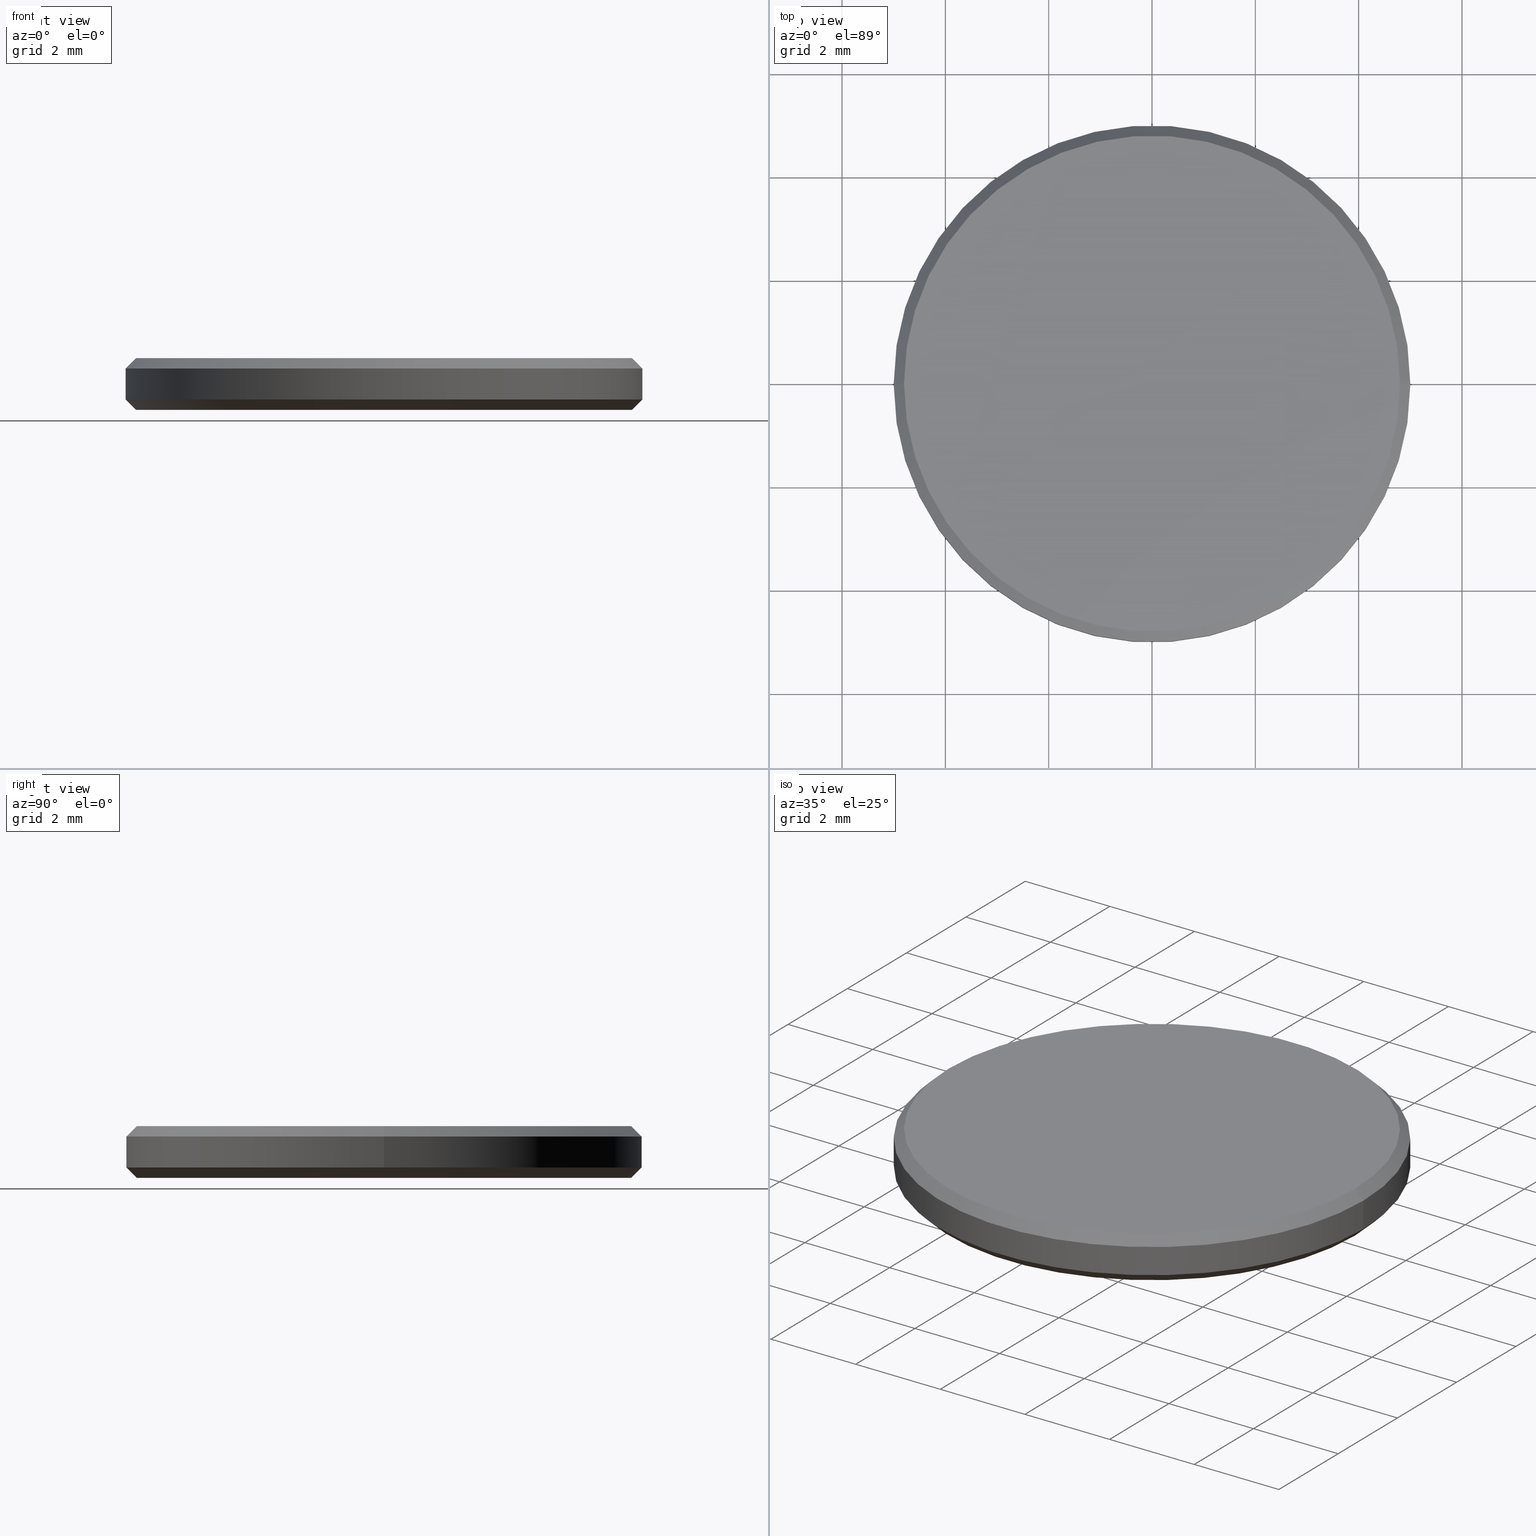
[diagram: canonical four-view strip — front | top / right | iso, engineering-drawing reading convention]
A machine part, canonical four-view strip (front | top / right | iso — engineering-drawing reading convention). The complete STEP part file that produces these views, byte-faithful:
ISO-10303-21;
HEADER;
FILE_DESCRIPTION (( 'STEP AP214' ),
    '1' );
FILE_NAME ('GNIF-140-2420-D10.STEP',
    '2024-07-19T14:37:52',
    ( '' ),
    ( '' ),
    'SwSTEP 2.0',
    'SolidWorks 2022',
    '' );
FILE_SCHEMA (( 'AUTOMOTIVE_DESIGN' ));
ENDSEC;

DATA;
#1 = VERTEX_POINT ( 'NONE', #119 ) ;
#2 = APPLICATION_CONTEXT ( 'automotive_design' ) ;
#3 = EDGE_LOOP ( 'NONE', ( #44, #53, #63, #75 ) ) ;
#4 = EDGE_CURVE ( 'NONE', #194, #79, #20, .T. ) ;
#5 = AXIS2_PLACEMENT_3D ( 'NONE', #37, #19, #239 ) ;
#6 = VERTEX_POINT ( 'NONE', #97 ) ;
#7 = AXIS2_PLACEMENT_3D ( 'NONE', #192, #212, #233 ) ;
#8 = CARTESIAN_POINT ( 'NONE',  ( 0.000000000000000000, 0.000000000000000000, 1.000000000000000000 ) ) ;
#9 = PRESENTATION_LAYER_ASSIGNMENT (  '', '', ( #166 ) ) ;
#10 = FACE_OUTER_BOUND ( 'NONE', #149, .T. ) ;
#11 = DIRECTION ( 'NONE',  ( 1.000000000000000000, 0.000000000000000000, 0.000000000000000000 ) ) ;
#12 = EDGE_CURVE ( 'NONE', #155, #194, #175, .T. ) ;
#13 = FACE_OUTER_BOUND ( 'NONE', #150, .T. ) ;
#14 =( NAMED_UNIT ( * ) SI_UNIT ( $, .STERADIAN. ) SOLID_ANGLE_UNIT ( ) );
#15 = AXIS2_PLACEMENT_3D ( 'NONE', #82, #180, #158 ) ;
#16 = DIRECTION ( 'NONE',  ( -0.000000000000000000, -0.000000000000000000, -1.000000000000000000 ) ) ;
#17 = STYLED_ITEM ( 'NONE', ( #68 ), #95 ) ;
#18 = ADVANCED_BREP_SHAPE_REPRESENTATION ( 'GNIF-140-2420-D10', ( #95, #193 ), #221 ) ;
#19 = DIRECTION ( 'NONE',  ( 0.000000000000000000, 0.000000000000000000, 1.000000000000000000 ) ) ;
#20 = CIRCLE ( 'NONE', #147, 5.000000000000000000 ) ;
#21 = PRODUCT_DEFINITION_SHAPE ( 'NONE', 'NONE',  #169 ) ;
#22 = ORIENTED_EDGE ( 'NONE', *, *, #31, .F. ) ;
#23 = ADVANCED_FACE ( 'NONE', ( #138 ), #40, .T. ) ;
#24 = CARTESIAN_POINT ( 'NONE',  ( 0.000000000000000000, 0.000000000000000000, 0.8000000000000012657 ) ) ;
#25 = DIRECTION ( 'NONE',  ( -0.000000000000000000, -0.000000000000000000, 1.000000000000000000 ) ) ;
#26 = AXIS2_PLACEMENT_3D ( 'NONE', #157, #139, #235 ) ;
#27 = FILL_AREA_STYLE ('',( #210 ) ) ;
#28 = AXIS2_PLACEMENT_3D ( 'NONE', #216, #182, #83 ) ;
#29 = DIRECTION ( 'NONE',  ( 0.000000000000000000, 0.000000000000000000, 1.000000000000000000 ) ) ;
#30 = DIRECTION ( 'NONE',  ( -0.000000000000000000, -0.000000000000000000, -1.000000000000000000 ) ) ;
#31 = EDGE_CURVE ( 'NONE', #204, #1, #101, .T. ) ;
#32 = CARTESIAN_POINT ( 'NONE',  ( 0.000000000000000000, 0.000000000000000000, 1.000000000000000000 ) ) ;
#33 = CARTESIAN_POINT ( 'NONE',  ( 4.800000000000002487, 5.878304635907297169E-16, 1.000000000000000000 ) ) ;
#34 = SURFACE_STYLE_USAGE ( .BOTH. , #189 ) ;
#35 =( NAMED_UNIT ( * ) PLANE_ANGLE_UNIT ( ) SI_UNIT ( $, .RADIAN. ) );
#36 = ORIENTED_EDGE ( 'NONE', *, *, #135, .F. ) ;
#37 = CARTESIAN_POINT ( 'NONE',  ( 0.000000000000000000, 0.000000000000000000, 1.000000000000000000 ) ) ;
#38 = CARTESIAN_POINT ( 'NONE',  ( 0.000000000000000000, 0.000000000000000000, 0.1999999999999996503 ) ) ;
#39 = VECTOR ( 'NONE', #126, 1000.000000000000000 ) ;
#40 = CONICAL_SURFACE ( 'NONE', #116, 5.000000000000000000, 0.7853981633974503884 ) ;
#41 = EDGE_LOOP ( 'NONE', ( #223, #184, #115, #55 ) ) ;
#42 = PLANE ( 'NONE',  #7 ) ;
#43 =( GEOMETRIC_REPRESENTATION_CONTEXT ( 3 ) GLOBAL_UNCERTAINTY_ASSIGNED_CONTEXT ( ( #178 ) ) GLOBAL_UNIT_ASSIGNED_CONTEXT ( ( #113, #167, #14 ) ) REPRESENTATION_CONTEXT ( 'NONE', 'WORKASPACE' ) );
#44 = ORIENTED_EDGE ( 'NONE', *, *, #120, .F. ) ;
#45 = CARTESIAN_POINT ( 'NONE',  ( 0.000000000000000000, 0.000000000000000000, 0.1999999999999996503 ) ) ;
#46 = CARTESIAN_POINT ( 'NONE',  ( 5.000000000000000000, 0.000000000000000000, 0.1999999999999996503 ) ) ;
#47 = AXIS2_PLACEMENT_3D ( 'NONE', #162, #185, #146 ) ;
#48 =( NAMED_UNIT ( * ) SI_UNIT ( $, .STERADIAN. ) SOLID_ANGLE_UNIT ( ) );
#49 = EDGE_CURVE ( 'NONE', #194, #6, #154, .T. ) ;
#50 = FACE_OUTER_BOUND ( 'NONE', #206, .T. ) ;
#51 = CARTESIAN_POINT ( 'NONE',  ( -5.000000000000000000, 6.123233995736765296E-16, 0.1999999999999996503 ) ) ;
#52 = COLOUR_RGB ( '',1.000000000000000000, 1.000000000000000000, 1.000000000000000000 ) ;
#53 = ORIENTED_EDGE ( 'NONE', *, *, #145, .T. ) ;
#54 = ORIENTED_EDGE ( 'NONE', *, *, #231, .T. ) ;
#55 = ORIENTED_EDGE ( 'NONE', *, *, #49, .F. ) ;
#56 = ORIENTED_EDGE ( 'NONE', *, *, #49, .T. ) ;
#57 = ADVANCED_FACE ( 'NONE', ( #205 ), #42, .F. ) ;
#58 = DIRECTION ( 'NONE',  ( 0.000000000000000000, 0.000000000000000000, 1.000000000000000000 ) ) ;
#59 = ADVANCED_FACE ( 'NONE', ( #10 ), #86, .T. ) ;
#60 = ORIENTED_EDGE ( 'NONE', *, *, #96, .F. ) ;
#61 = AXIS2_PLACEMENT_3D ( 'NONE', #32, #236, #199 ) ;
#62 = ORIENTED_EDGE ( 'NONE', *, *, #188, .F. ) ;
#63 = ORIENTED_EDGE ( 'NONE', *, *, #4, .F. ) ;
#64 = DIRECTION ( 'NONE',  ( -0.7071067811865460184, 0.000000000000000000, -0.7071067811865489050 ) ) ;
#65 = CARTESIAN_POINT ( 'NONE',  ( -4.800000000000002487, 0.000000000000000000, 1.000000000000000000 ) ) ;
#66 = CARTESIAN_POINT ( 'NONE',  ( 0.000000000000000000, 0.000000000000000000, 1.000000000000000000 ) ) ;
#67 = LINE ( 'NONE', #46, #228 ) ;
#68 = PRESENTATION_STYLE_ASSIGNMENT (( #100 ) ) ;
#69 = DIRECTION ( 'NONE',  ( 1.000000000000000000, 0.000000000000000000, 0.000000000000000000 ) ) ;
#70 = CIRCLE ( 'NONE', #163, 4.799999999999999822 ) ;
#71 = AXIS2_PLACEMENT_3D ( 'NONE', #103, #29, #104 ) ;
#72 = PRODUCT_CONTEXT ( 'NONE', #234, 'mechanical' ) ;
#73 =( LENGTH_UNIT ( ) NAMED_UNIT ( * ) SI_UNIT ( .MILLI., .METRE. ) );
#74 = ADVANCED_FACE ( 'NONE', ( #13 ), #144, .T. ) ;
#75 = ORIENTED_EDGE ( 'NONE', *, *, #12, .F. ) ;
#76 = ORIENTED_EDGE ( 'NONE', *, *, #181, .F. ) ;
#77 = VECTOR ( 'NONE', #215, 1000.000000000000114 ) ;
#78 = ORIENTED_EDGE ( 'NONE', *, *, #135, .T. ) ;
#79 = VERTEX_POINT ( 'NONE', #85 ) ;
#80 =( GEOMETRIC_REPRESENTATION_CONTEXT ( 3 ) GLOBAL_UNCERTAINTY_ASSIGNED_CONTEXT ( ( #213 ) ) GLOBAL_UNIT_ASSIGNED_CONTEXT ( ( #142, #102, #48 ) ) REPRESENTATION_CONTEXT ( 'NONE', 'WORKASPACE' ) );
#81 = PRODUCT_DEFINITION_CONTEXT ( 'detailed design', #2, 'design' ) ;
#82 = CARTESIAN_POINT ( 'NONE',  ( 0.000000000000000000, 0.000000000000000000, 0.8000000000000012657 ) ) ;
#83 = DIRECTION ( 'NONE',  ( 1.000000000000000000, 0.000000000000000000, 0.000000000000000000 ) ) ;
#84 = PRODUCT_DEFINITION_FORMATION_WITH_SPECIFIED_SOURCE ( '�κ�', '', #171, .NOT_KNOWN. ) ;
#85 = CARTESIAN_POINT ( 'NONE',  ( 5.000000000000000000, 6.123233995736766282E-16, 0.8000000000000012657 ) ) ;
#86 = CYLINDRICAL_SURFACE ( 'NONE', #179, 5.000000000000000000 ) ;
#87 = CONICAL_SURFACE ( 'NONE', #61, 4.800000000000002487, 0.7853981633974461696 ) ;
#88 = APPLICATION_PROTOCOL_DEFINITION ( 'draft international standard', 'automotive_design', 1998, #234 ) ;
#89 = CIRCLE ( 'NONE', #15, 5.000000000000000000 ) ;
#90 = APPLICATION_PROTOCOL_DEFINITION ( 'draft international standard', 'automotive_design', 1998, #2 ) ;
#91 = CARTESIAN_POINT ( 'NONE',  ( 0.000000000000000000, 0.000000000000000000, 1.000000000000000000 ) ) ;
#92 = ORIENTED_EDGE ( 'NONE', *, *, #188, .T. ) ;
#93 = CARTESIAN_POINT ( 'NONE',  ( -5.000000000000000000, 0.000000000000000000, 1.000000000000000000 ) ) ;
#94 = EDGE_LOOP ( 'NONE', ( #225, #36, #92, #76 ) ) ;
#95 = MANIFOLD_SOLID_BREP ( '����1', #240 ) ;
#96 = EDGE_CURVE ( 'NONE', #137, #6, #133, .T. ) ;
#97 = CARTESIAN_POINT ( 'NONE',  ( -5.000000000000000000, 0.000000000000000000, 0.1999999999999996503 ) ) ;
#98 = DIRECTION ( 'NONE',  ( 0.000000000000000000, 0.000000000000000000, -1.000000000000000000 ) ) ;
#99 = CIRCLE ( 'NONE', #26, 5.000000000000000000 ) ;
#100 = SURFACE_STYLE_USAGE ( .BOTH. , #161 ) ;
#101 = CIRCLE ( 'NONE', #197, 4.799999999999999822 ) ;
#102 =( NAMED_UNIT ( * ) PLANE_ANGLE_UNIT ( ) SI_UNIT ( $, .RADIAN. ) );
#103 = CARTESIAN_POINT ( 'NONE',  ( 0.000000000000000000, 0.000000000000000000, 1.000000000000000000 ) ) ;
#104 = DIRECTION ( 'NONE',  ( 1.000000000000000000, 0.000000000000000000, -0.000000000000000000 ) ) ;
#105 = PRODUCT_RELATED_PRODUCT_CATEGORY ( 'part', '', ( #171 ) ) ;
#106 = ORIENTED_EDGE ( 'NONE', *, *, #118, .T. ) ;
#107 = AXIS2_PLACEMENT_3D ( 'NONE', #91, #16, #186 ) ;
#108 = DIRECTION ( 'NONE',  ( -0.000000000000000000, -0.000000000000000000, 1.000000000000000000 ) ) ;
#109 = UNCERTAINTY_MEASURE_WITH_UNIT (LENGTH_MEASURE( 1.000000000000000082E-05 ), #73, 'distance_accuracy_value', 'NONE');
#110 = VERTEX_POINT ( 'NONE', #141 ) ;
#111 = FILL_AREA_STYLE ('',( #222 ) ) ;
#112 = ORIENTED_EDGE ( 'NONE', *, *, #31, .T. ) ;
#113 =( LENGTH_UNIT ( ) NAMED_UNIT ( * ) SI_UNIT ( .MILLI., .METRE. ) );
#114 = CARTESIAN_POINT ( 'NONE',  ( 5.000000000000000000, 6.123233995736766282E-16, 1.000000000000000000 ) ) ;
#115 = ORIENTED_EDGE ( 'NONE', *, *, #96, .T. ) ;
#116 = AXIS2_PLACEMENT_3D ( 'NONE', #45, #25, #227 ) ;
#117 = MECHANICAL_DESIGN_GEOMETRIC_PRESENTATION_REPRESENTATION (  '', ( #166 ), #43 ) ;
#118 = EDGE_CURVE ( 'NONE', #79, #194, #89, .T. ) ;
#119 = CARTESIAN_POINT ( 'NONE',  ( 4.799999999999999822, 0.000000000000000000, 0.000000000000000000 ) ) ;
#120 = EDGE_CURVE ( 'NONE', #110, #155, #203, .T. ) ;
#121 = LINE ( 'NONE', #33, #77 ) ;
#122 = AXIS2_PLACEMENT_3D ( 'NONE', #38, #108, #187 ) ;
#123 = DIRECTION ( 'NONE',  ( -1.000000000000000000, 0.000000000000000000, 0.000000000000000000 ) ) ;
#124 = CARTESIAN_POINT ( 'NONE',  ( 0.000000000000000000, 0.000000000000000000, 0.000000000000000000 ) ) ;
#125 = LINE ( 'NONE', #51, #39 ) ;
#126 = DIRECTION ( 'NONE',  ( -0.7071067811865490160, 8.659560562354950115E-17, 0.7071067811865459074 ) ) ;
#127 = FACE_OUTER_BOUND ( 'NONE', #130, .T. ) ;
#128 = CYLINDRICAL_SURFACE ( 'NONE', #107, 5.000000000000000000 ) ;
#129 = ORIENTED_EDGE ( 'NONE', *, *, #224, .F. ) ;
#130 = EDGE_LOOP ( 'NONE', ( #22, #174, #60, #62 ) ) ;
#131 = DIRECTION ( 'NONE',  ( 1.000000000000000000, 0.000000000000000000, 0.000000000000000000 ) ) ;
#132 = CARTESIAN_POINT ( 'NONE',  ( 0.000000000000000000, 0.000000000000000000, 0.000000000000000000 ) ) ;
#133 = CIRCLE ( 'NONE', #28, 5.000000000000000000 ) ;
#134 = DIRECTION ( 'NONE',  ( -0.000000000000000000, -0.000000000000000000, -1.000000000000000000 ) ) ;
#135 = EDGE_CURVE ( 'NONE', #1, #204, #70, .T. ) ;
#136 = COLOUR_RGB ( '',1.000000000000000000, 1.000000000000000000, 1.000000000000000000 ) ;
#137 = VERTEX_POINT ( 'NONE', #183 ) ;
#138 = FACE_OUTER_BOUND ( 'NONE', #94, .T. ) ;
#139 = DIRECTION ( 'NONE',  ( -0.000000000000000000, -0.000000000000000000, 1.000000000000000000 ) ) ;
#140 = SURFACE_STYLE_FILL_AREA ( #27 ) ;
#141 = CARTESIAN_POINT ( 'NONE',  ( 4.800000000000002487, 6.000769315822031726E-16, 1.000000000000000000 ) ) ;
#142 =( LENGTH_UNIT ( ) NAMED_UNIT ( * ) SI_UNIT ( .MILLI., .METRE. ) );
#143 = EDGE_CURVE ( 'NONE', #204, #6, #125, .T. ) ;
#144 = PLANE ( 'NONE',  #71 ) ;
#145 = EDGE_CURVE ( 'NONE', #110, #79, #121, .T. ) ;
#146 = DIRECTION ( 'NONE',  ( -1.000000000000000000, 0.000000000000000000, 0.000000000000000000 ) ) ;
#147 = AXIS2_PLACEMENT_3D ( 'NONE', #24, #98, #172 ) ;
#148 = CARTESIAN_POINT ( 'NONE',  ( -4.799999999999999822, 6.000769315822029754E-16, 0.000000000000000000 ) ) ;
#149 = EDGE_LOOP ( 'NONE', ( #129, #106, #56, #230 ) ) ;
#150 = EDGE_LOOP ( 'NONE', ( #54, #209 ) ) ;
#151 = VECTOR ( 'NONE', #220, 1000.000000000000000 ) ;
#152 = EDGE_LOOP ( 'NONE', ( #78, #112 ) ) ;
#153 = MECHANICAL_DESIGN_GEOMETRIC_PRESENTATION_REPRESENTATION (  '', ( #17 ), #80 ) ;
#154 = LINE ( 'NONE', #93, #156 ) ;
#155 = VERTEX_POINT ( 'NONE', #65 ) ;
#156 = VECTOR ( 'NONE', #134, 1000.000000000000000 ) ;
#157 = CARTESIAN_POINT ( 'NONE',  ( 0.000000000000000000, 0.000000000000000000, 0.1999999999999996503 ) ) ;
#158 = DIRECTION ( 'NONE',  ( 1.000000000000000000, 0.000000000000000000, 0.000000000000000000 ) ) ;
#159 = DIRECTION ( 'NONE',  ( -0.000000000000000000, -0.000000000000000000, -1.000000000000000000 ) ) ;
#160 = DIRECTION ( 'NONE',  ( 0.000000000000000000, 0.000000000000000000, 1.000000000000000000 ) ) ;
#161 = SURFACE_SIDE_STYLE ('',( #140 ) ) ;
#162 = CARTESIAN_POINT ( 'NONE',  ( 0.000000000000000000, 0.000000000000000000, 1.000000000000000000 ) ) ;
#163 = AXIS2_PLACEMENT_3D ( 'NONE', #124, #159, #69 ) ;
#164 =( NAMED_UNIT ( * ) SI_UNIT ( $, .STERADIAN. ) SOLID_ANGLE_UNIT ( ) );
#165 = SHAPE_DEFINITION_REPRESENTATION ( #21, #18 ) ;
#166 = STYLED_ITEM ( 'NONE', ( #202 ), #18 ) ;
#167 =( NAMED_UNIT ( * ) PLANE_ANGLE_UNIT ( ) SI_UNIT ( $, .RADIAN. ) );
#168 = ADVANCED_FACE ( 'NONE', ( #50 ), #87, .T. ) ;
#169 = PRODUCT_DEFINITION ( 'δ֪', '', #84, #81 ) ;
#170 = ORIENTED_EDGE ( 'NONE', *, *, #118, .F. ) ;
#171 = PRODUCT ( 'GNIF-140-2420-D10', 'GNIF-140-2420-D10', '', ( #72 ) ) ;
#172 = DIRECTION ( 'NONE',  ( 1.000000000000000000, 0.000000000000000000, 0.000000000000000000 ) ) ;
#173 = ORIENTED_EDGE ( 'NONE', *, *, #145, .F. ) ;
#174 = ORIENTED_EDGE ( 'NONE', *, *, #143, .T. ) ;
#175 = LINE ( 'NONE', #232, #219 ) ;
#176 = CONICAL_SURFACE ( 'NONE', #47, 4.800000000000002487, 0.7853981633974461696 ) ;
#177 = ORIENTED_EDGE ( 'NONE', *, *, #12, .T. ) ;
#178 = UNCERTAINTY_MEASURE_WITH_UNIT (LENGTH_MEASURE( 1.000000000000000082E-05 ), #113, 'distance_accuracy_value', 'NONE');
#179 = AXIS2_PLACEMENT_3D ( 'NONE', #66, #30, #123 ) ;
#180 = DIRECTION ( 'NONE',  ( 0.000000000000000000, 0.000000000000000000, -1.000000000000000000 ) ) ;
#181 = EDGE_CURVE ( 'NONE', #6, #137, #99, .T. ) ;
#182 = DIRECTION ( 'NONE',  ( -0.000000000000000000, -0.000000000000000000, 1.000000000000000000 ) ) ;
#183 = CARTESIAN_POINT ( 'NONE',  ( 5.000000000000000000, 6.123233995736766282E-16, 0.1999999999999996503 ) ) ;
#184 = ORIENTED_EDGE ( 'NONE', *, *, #224, .T. ) ;
#185 = DIRECTION ( 'NONE',  ( 0.000000000000000000, 0.000000000000000000, -1.000000000000000000 ) ) ;
#186 = DIRECTION ( 'NONE',  ( -1.000000000000000000, 0.000000000000000000, 0.000000000000000000 ) ) ;
#187 = DIRECTION ( 'NONE',  ( 1.000000000000000000, 0.000000000000000000, 0.000000000000000000 ) ) ;
#188 = EDGE_CURVE ( 'NONE', #1, #137, #67, .T. ) ;
#189 = SURFACE_SIDE_STYLE ('',( #237 ) ) ;
#190 = PRESENTATION_LAYER_ASSIGNMENT (  '', '', ( #17 ) ) ;
#191 = DIRECTION ( 'NONE',  ( 1.000000000000000000, 0.000000000000000000, 0.000000000000000000 ) ) ;
#192 = CARTESIAN_POINT ( 'NONE',  ( 0.000000000000000000, 0.000000000000000000, 0.000000000000000000 ) ) ;
#193 = AXIS2_PLACEMENT_3D ( 'NONE', #226, #58, #131 ) ;
#194 = VERTEX_POINT ( 'NONE', #198 ) ;
#195 = ADVANCED_FACE ( 'NONE', ( #214 ), #176, .T. ) ;
#196 = DIRECTION ( 'NONE',  ( 0.7071067811865490160, 0.000000000000000000, 0.7071067811865459074 ) ) ;
#197 = AXIS2_PLACEMENT_3D ( 'NONE', #132, #229, #191 ) ;
#198 = CARTESIAN_POINT ( 'NONE',  ( -5.000000000000000000, 0.000000000000000000, 0.8000000000000012657 ) ) ;
#199 = DIRECTION ( 'NONE',  ( -1.000000000000000000, 0.000000000000000000, 0.000000000000000000 ) ) ;
#200 = LINE ( 'NONE', #114, #151 ) ;
#201 = ADVANCED_FACE ( 'NONE', ( #127 ), #238, .T. ) ;
#202 = PRESENTATION_STYLE_ASSIGNMENT (( #34 ) ) ;
#203 = CIRCLE ( 'NONE', #211, 4.800000000000002487 ) ;
#204 = VERTEX_POINT ( 'NONE', #148 ) ;
#205 = FACE_OUTER_BOUND ( 'NONE', #152, .T. ) ;
#206 = EDGE_LOOP ( 'NONE', ( #173, #207, #177, #170 ) ) ;
#207 = ORIENTED_EDGE ( 'NONE', *, *, #231, .F. ) ;
#208 = ADVANCED_FACE ( 'NONE', ( #218 ), #128, .T. ) ;
#209 = ORIENTED_EDGE ( 'NONE', *, *, #120, .T. ) ;
#210 = FILL_AREA_STYLE_COLOUR ( '', #52 ) ;
#211 = AXIS2_PLACEMENT_3D ( 'NONE', #8, #160, #11 ) ;
#212 = DIRECTION ( 'NONE',  ( 0.000000000000000000, 0.000000000000000000, 1.000000000000000000 ) ) ;
#213 = UNCERTAINTY_MEASURE_WITH_UNIT (LENGTH_MEASURE( 1.000000000000000082E-05 ), #142, 'distance_accuracy_value', 'NONE');
#214 = FACE_OUTER_BOUND ( 'NONE', #3, .T. ) ;
#215 = DIRECTION ( 'NONE',  ( 0.7071067811865460184, 8.659560562354913137E-17, -0.7071067811865489050 ) ) ;
#216 = CARTESIAN_POINT ( 'NONE',  ( 0.000000000000000000, 0.000000000000000000, 0.1999999999999996503 ) ) ;
#217 = CIRCLE ( 'NONE', #5, 4.800000000000002487 ) ;
#218 = FACE_OUTER_BOUND ( 'NONE', #41, .T. ) ;
#219 = VECTOR ( 'NONE', #64, 1000.000000000000114 ) ;
#220 = DIRECTION ( 'NONE',  ( -0.000000000000000000, -0.000000000000000000, -1.000000000000000000 ) ) ;
#221 =( GEOMETRIC_REPRESENTATION_CONTEXT ( 3 ) GLOBAL_UNCERTAINTY_ASSIGNED_CONTEXT ( ( #109 ) ) GLOBAL_UNIT_ASSIGNED_CONTEXT ( ( #73, #35, #164 ) ) REPRESENTATION_CONTEXT ( 'NONE', 'WORKASPACE' ) );
#222 = FILL_AREA_STYLE_COLOUR ( '', #136 ) ;
#223 = ORIENTED_EDGE ( 'NONE', *, *, #4, .T. ) ;
#224 = EDGE_CURVE ( 'NONE', #79, #137, #200, .T. ) ;
#225 = ORIENTED_EDGE ( 'NONE', *, *, #143, .F. ) ;
#226 = CARTESIAN_POINT ( 'NONE',  ( 0.000000000000000000, 0.000000000000000000, 0.000000000000000000 ) ) ;
#227 = DIRECTION ( 'NONE',  ( 1.000000000000000000, 0.000000000000000000, 0.000000000000000000 ) ) ;
#228 = VECTOR ( 'NONE', #196, 1000.000000000000000 ) ;
#229 = DIRECTION ( 'NONE',  ( -0.000000000000000000, -0.000000000000000000, -1.000000000000000000 ) ) ;
#230 = ORIENTED_EDGE ( 'NONE', *, *, #181, .T. ) ;
#231 = EDGE_CURVE ( 'NONE', #155, #110, #217, .T. ) ;
#232 = CARTESIAN_POINT ( 'NONE',  ( -4.800000000000002487, 0.000000000000000000, 1.000000000000000000 ) ) ;
#233 = DIRECTION ( 'NONE',  ( 1.000000000000000000, 0.000000000000000000, -0.000000000000000000 ) ) ;
#234 = APPLICATION_CONTEXT ( 'automotive_design' ) ;
#235 = DIRECTION ( 'NONE',  ( 1.000000000000000000, 0.000000000000000000, 0.000000000000000000 ) ) ;
#236 = DIRECTION ( 'NONE',  ( 0.000000000000000000, 0.000000000000000000, -1.000000000000000000 ) ) ;
#237 = SURFACE_STYLE_FILL_AREA ( #111 ) ;
#238 = CONICAL_SURFACE ( 'NONE', #122, 5.000000000000000000, 0.7853981633974503884 ) ;
#239 = DIRECTION ( 'NONE',  ( 1.000000000000000000, 0.000000000000000000, 0.000000000000000000 ) ) ;
#240 = CLOSED_SHELL ( 'NONE', ( #201, #195, #208, #59, #74, #57, #168, #23 ) ) ;
ENDSEC;
END-ISO-10303-21;
